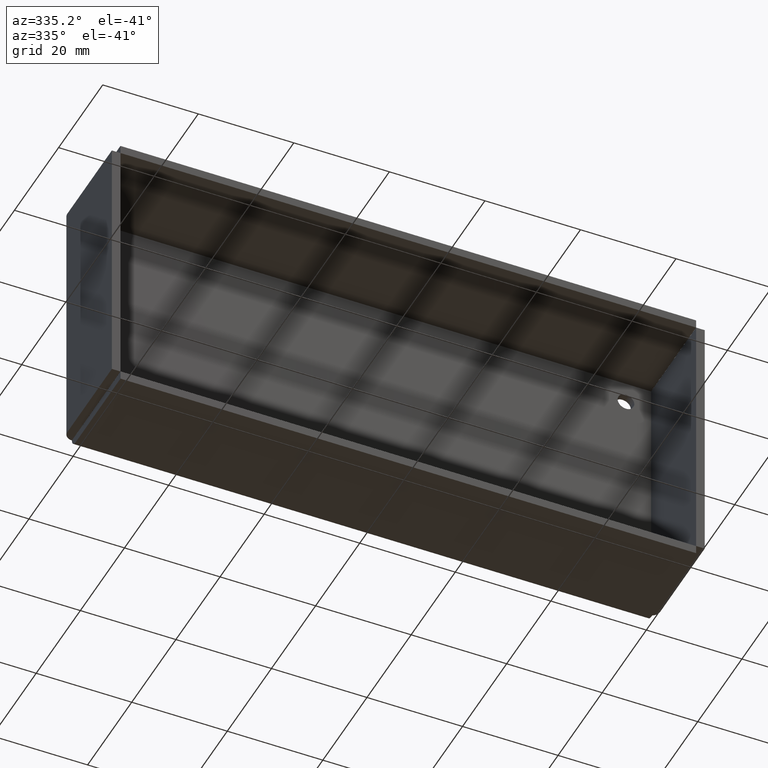
[diagram: clean part render]
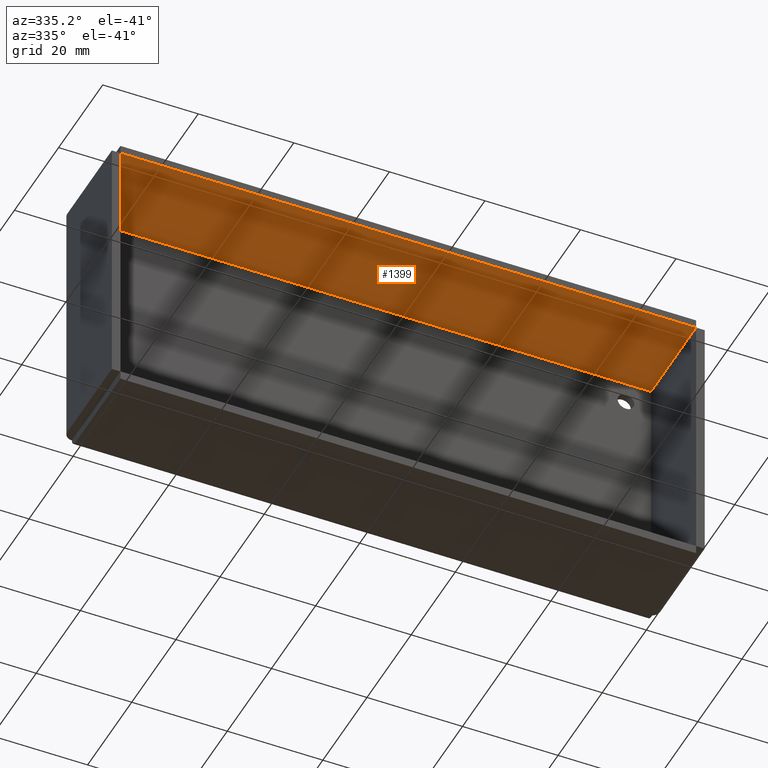
[diagram: same view with one face highlighted and labeled with its STEP entity id]
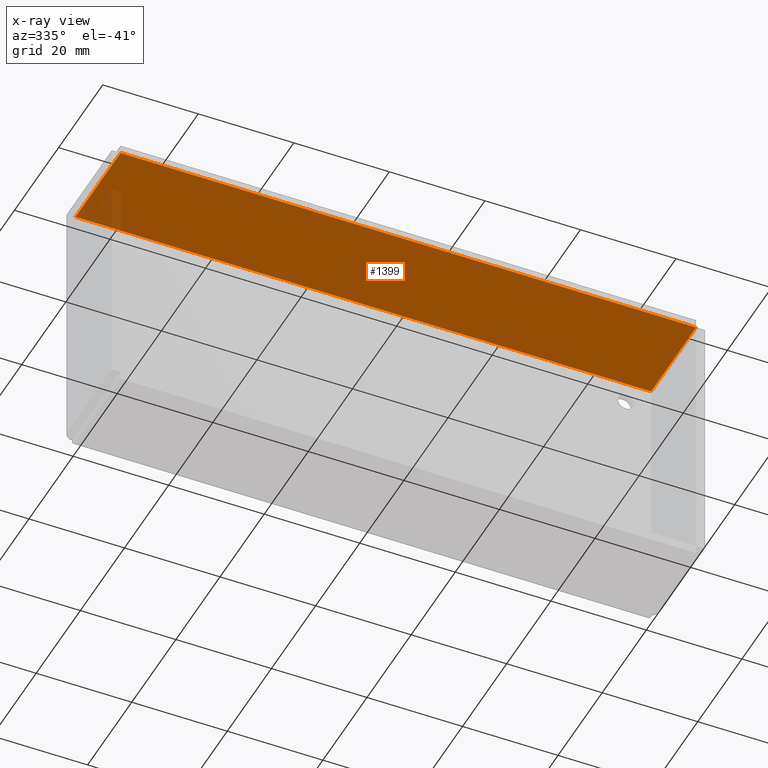
[diagram: x-ray of the same camera — body ghosted, the highlighted face saturated]
A machine part, auxiliary view. The second image highlights one B-rep face of the part: STEP entity #1399.
The next image is the same camera in x-ray: the body ghosted, the highlighted face saturated — about 2% of this face is hidden behind the body in this view.
In plain terms, the highlighted face is a freeform B-spline surface patch.
Its self-contained STEP definition (entity closure, byte-faithful):
#1364=CARTESIAN_POINT('',(-66.268974766447613,-23.018979960460840,27.510000000000002));
#1365=CARTESIAN_POINT('',(66.268977998509484,-23.018979960460840,27.510000000000002));
#1366=CARTESIAN_POINT('',(-66.268974766447613,-0.581019492368520,27.510000000000002));
#1367=CARTESIAN_POINT('',(66.268977998509484,-0.581019492368520,27.510000000000002));
#1368=B_SPLINE_SURFACE_WITH_KNOTS('',1,1,((#1364,#1366),(#1365,#1367)),.UNSPECIFIED.,.F.,.F.,.U.,(2,2),(2,2),(0.0,132.537952764957110),(0.0,22.437960468092321),.UNSPECIFIED.);
#1369=CARTESIAN_POINT('',(-60.250000000000000,-22.0,27.510000000000002));
#1370=VERTEX_POINT('',#1369);
#1371=CARTESIAN_POINT('',(-60.250000000000000,-1.600000000000000,27.510000000000002));
#1372=VERTEX_POINT('',#1371);
#1373=CARTESIAN_POINT('',(-60.250000000000000,-22.0,27.510000000000002));
#1374=CARTESIAN_POINT('',(-60.250000000000000,-1.600000000000000,27.510000000000002));
#1375=QUASI_UNIFORM_CURVE('',1,(#1373,#1374),.UNSPECIFIED.,.F.,.U.);
#1376=EDGE_CURVE('',#1370,#1372,#1375,.T.);
#1377=ORIENTED_EDGE('',*,*,#1376,.T.);
#1378=CARTESIAN_POINT('',(60.250000000000000,-1.600000000000000,27.510000000000002));
#1379=VERTEX_POINT('',#1378);
#1380=CARTESIAN_POINT('',(60.250000000000000,-1.600000000000000,27.510000000000002));
#1381=CARTESIAN_POINT('',(-60.250000000000000,-1.600000000000000,27.510000000000002));
#1382=QUASI_UNIFORM_CURVE('',1,(#1380,#1381),.UNSPECIFIED.,.F.,.U.);
#1383=EDGE_CURVE('',#1379,#1372,#1382,.T.);
#1384=ORIENTED_EDGE('',*,*,#1383,.F.);
#1385=CARTESIAN_POINT('',(60.250000000000000,-22.0,27.510000000000002));
#1386=VERTEX_POINT('',#1385);
#1387=CARTESIAN_POINT('',(60.250000000000000,-22.0,27.510000000000002));
#1388=CARTESIAN_POINT('',(60.250000000000000,-1.600000000000000,27.510000000000002));
#1389=QUASI_UNIFORM_CURVE('',1,(#1387,#1388),.UNSPECIFIED.,.F.,.U.);
#1390=EDGE_CURVE('',#1386,#1379,#1389,.T.);
#1391=ORIENTED_EDGE('',*,*,#1390,.F.);
#1392=CARTESIAN_POINT('',(60.250000000000000,-22.0,27.510000000000002));
#1393=CARTESIAN_POINT('',(-60.250000000000000,-22.0,27.510000000000002));
#1394=QUASI_UNIFORM_CURVE('',1,(#1392,#1393),.UNSPECIFIED.,.F.,.U.);
#1395=EDGE_CURVE('',#1386,#1370,#1394,.T.);
#1396=ORIENTED_EDGE('',*,*,#1395,.T.);
#1397=EDGE_LOOP('',(#1377,#1384,#1391,#1396));
#1398=FACE_OUTER_BOUND('',#1397,.T.);
#1399=ADVANCED_FACE('',(#1398),#1368,.F.);